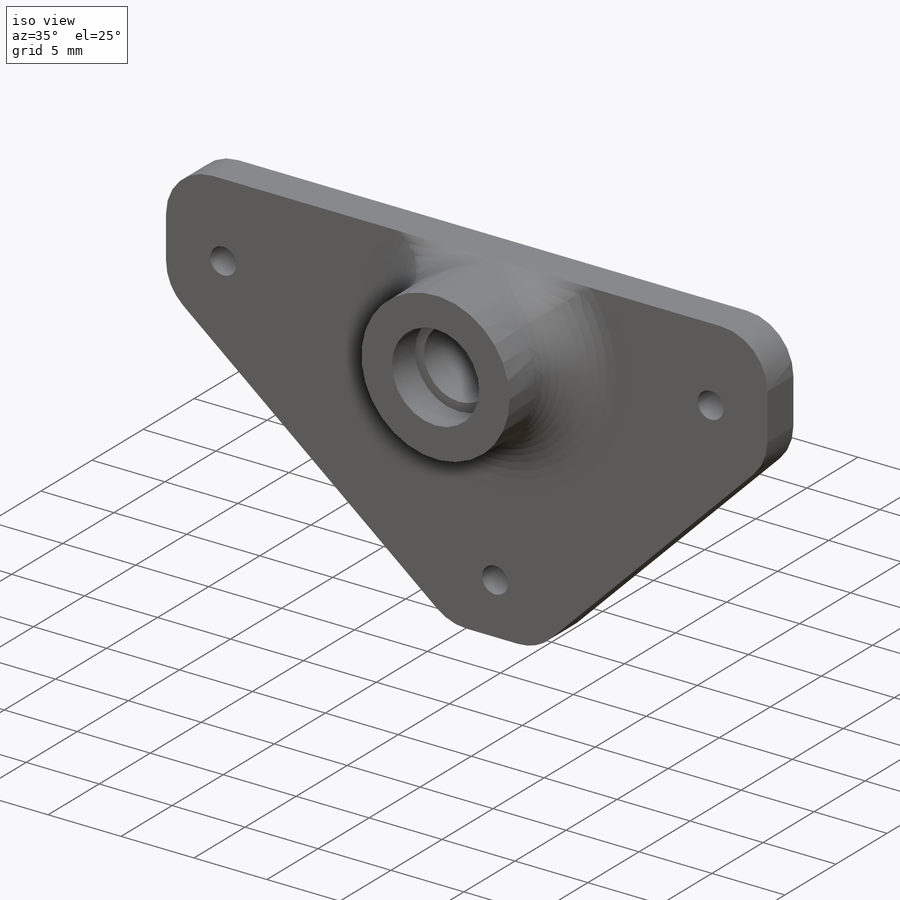
[diagram: iso view]
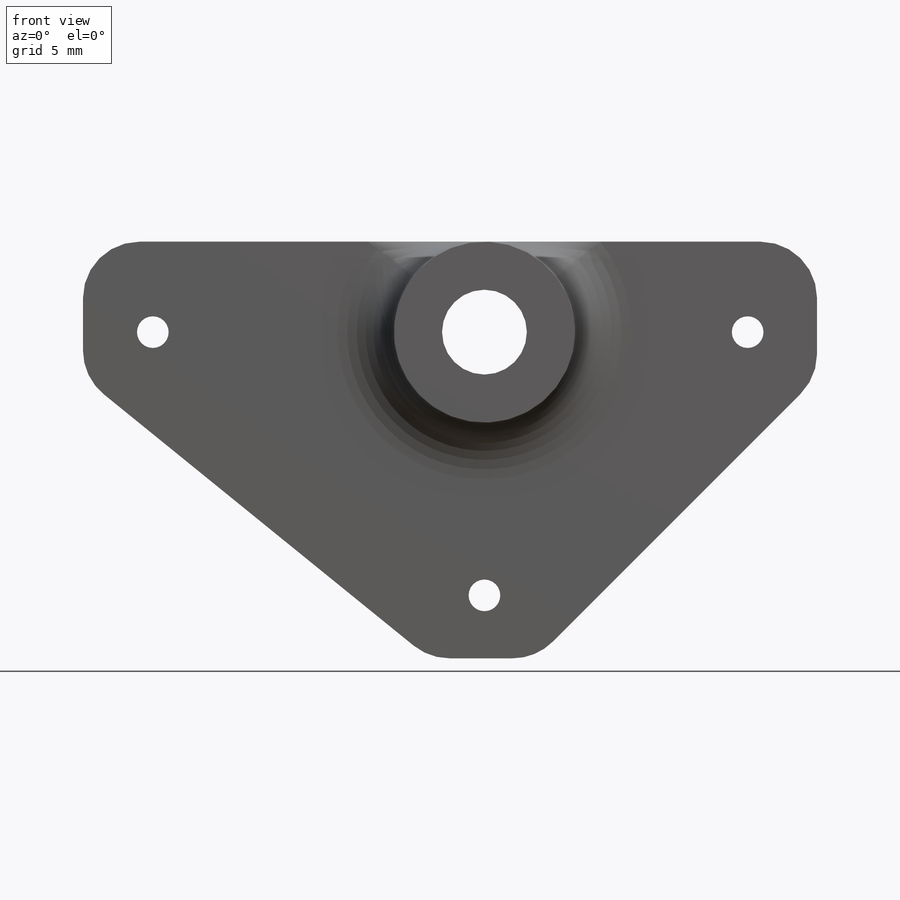
[diagram: front view]
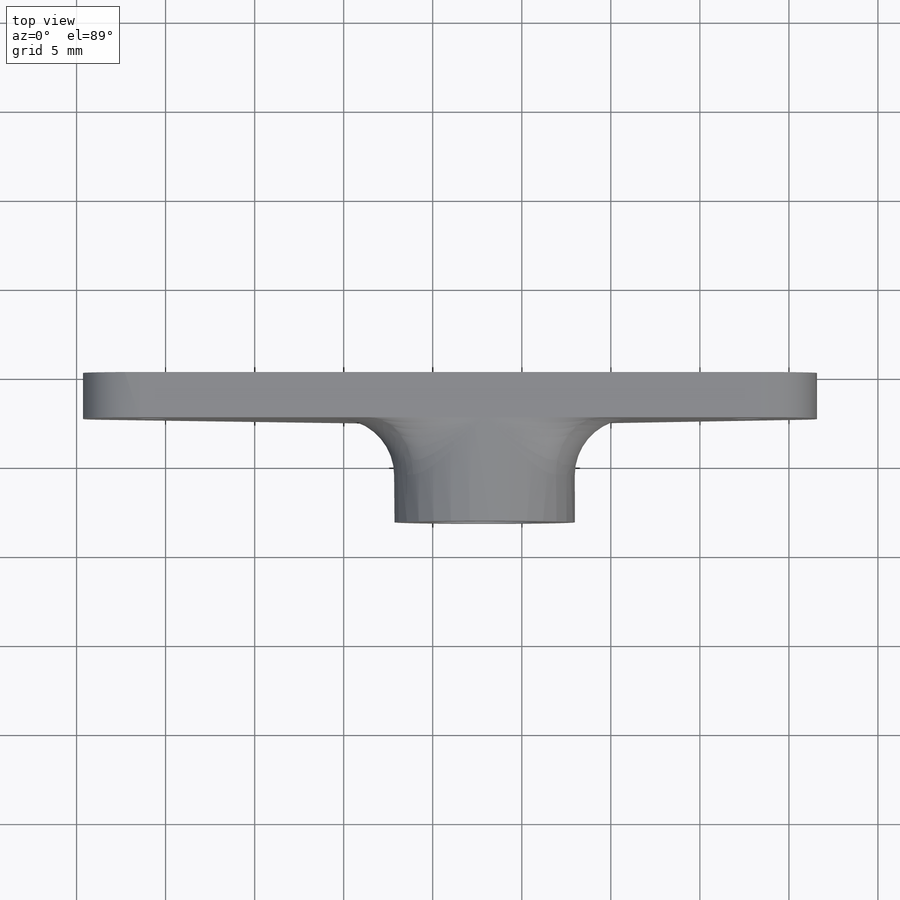
[diagram: top view]
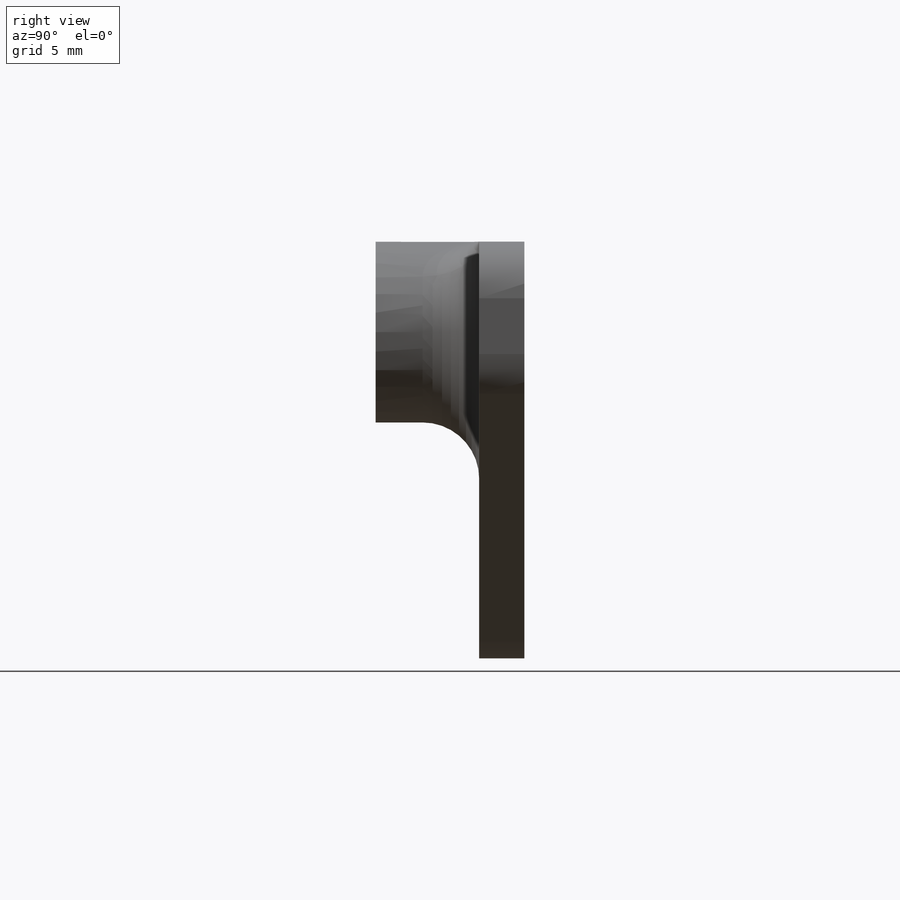
[diagram: right view]
SOLIDWORKS PART (.sldprt)
format: sldprt  version: not decoded by parser v0  size: 388,608 bytes
history: native  units: mm
features: sketch x11, cut_extrude x3, extrude x2, hole x2, fillet x2, material x1, plane x1 (+12 scaffold rows collapsed)
feature tree (34):
  scaffold x12  (default folders/planes/origin — collapsed)
  material  "6061-T6 (SS)"
  sketch  "Sketch4"  dims[c1.D1=7.62mm c2.D1=45.0deg c3.D1=44.45mm]
  extrude  "Extrude2"  Depth=2.54mm
  sketch  "Sketch8"  dims[D1=~18.62074mm]
  sketch  "Sketch5"  dims[D1=6.35mm]
  extrude  "Extrude3"  Depth=5.8166mm
  sketch  "Sketch11"  dims[D1=2.286mm]
  cut_extrude  "Extrude11"  [1 undecoded]
  sketch  "Sketch12"  dims[D1=3.0mm]
  cut_extrude  "Extrude12"  Depth=2.27076mm
  sketch  "Sketch14"  dims[D1=3.0mm]
  cut_extrude  "Extrude13"  Depth=2.27076mm
  hole  "#50 (0.07) Diameter Hole1"  Diameter=1.778mm Depth=5.08mm
  sketch  "3DSketch1"
  sketch  "Sketch9"  dims[hole-wizard template sketch: 47 standard entries collapsed; hole parameters kept: c15.Hole Depth=5.08mm c15.D3=~14.816244mm c15.Drill Angle=118.0deg]
  hole  "#50 (0.07) Diameter Hole2"  Diameter=1.778mm Depth=5.08mm
  sketch  "3DSketch2"
  sketch  "Sketch10"  dims[hole-wizard template sketch: 47 standard entries collapsed; hole parameters kept: c15.Hole Depth=5.08mm c15.D3=~14.816244mm c15.Drill Angle=118.0deg c15.faceID=6.0 c16.faceID=0.0 c17.faceID=15.0]
  fillet  "Fillet1"  Radius=3.175mm
  plane  "Plane1"  Offset=12.065mm
  sketch  "Sketch16"  dims[D1=24.13mm]
  fillet  "Fillet2"  Radius=3.175mm
decode coverage: 17 of 20 modeling features carry decoded parameters
note: ~ marks probable driven/reference dimensions
note: 1 parameter value undecoded
note: suppression state not decoded; provenance and decode notes live in map.json
